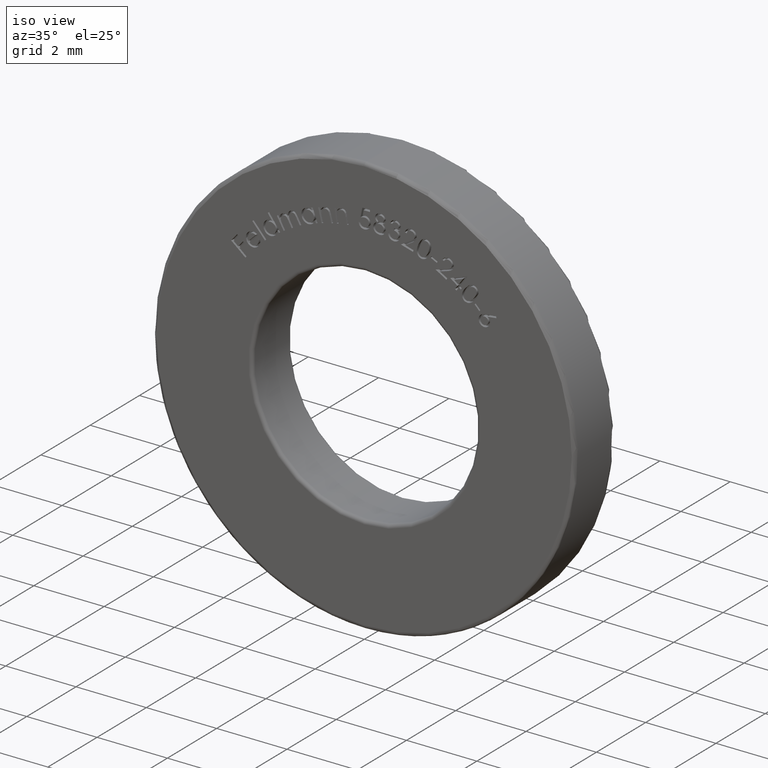
[diagram: clean part render]
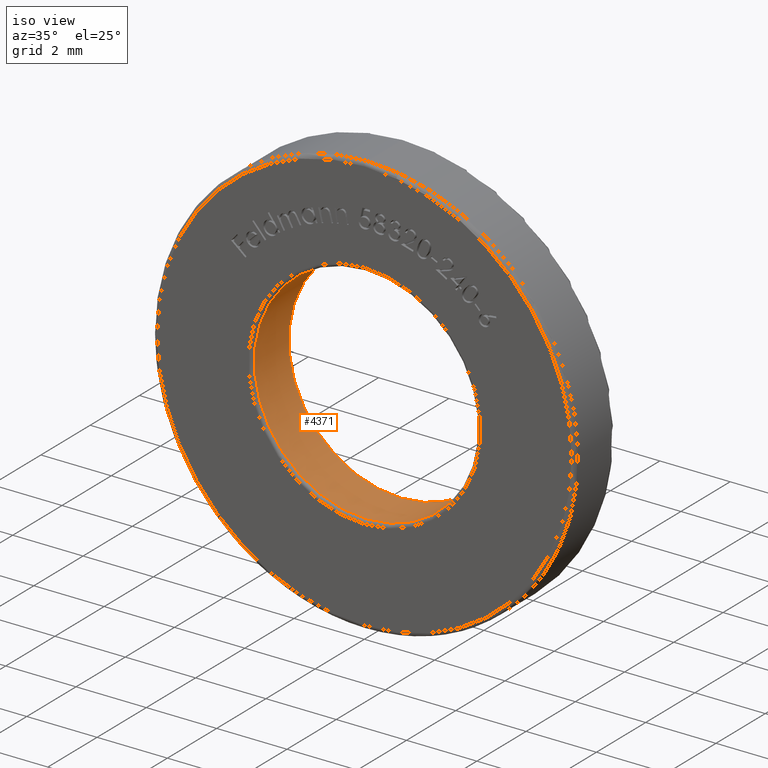
[diagram: same view with one face highlighted and labeled with its STEP entity id]
A machine part, iso view. The second image highlights one B-rep face of the part: STEP entity #4371.
In plain terms, the highlighted cylindrical surface (bore or boss wall) has radius 3.2 mm, axis along (-0, -1, -0).
Its self-contained STEP definition (entity closure, byte-faithful):
#502 = CARTESIAN_POINT ( 'NONE',  ( 0.0000000000000000000, 0.1000000000000000500, 0.0000000000000000000 ) ) ;
#659 = EDGE_LOOP ( 'NONE', ( #3274 ) ) ;
#1087 = CYLINDRICAL_SURFACE ( 'NONE', #10522, 3.200000000000000200 ) ;
#1152 = VERTEX_POINT ( 'NONE', #3756 ) ;
#1582 = DIRECTION ( 'NONE',  ( -0.0000000000000000000, -1.000000000000000000, -0.0000000000000000000 ) ) ;
#3274 = ORIENTED_EDGE ( 'NONE', *, *, #9890, .T. ) ;
#3756 = CARTESIAN_POINT ( 'NONE',  ( 0.0000000000000000000, 0.1000000000000000500, 3.200000000000000200 ) ) ;
#4231 = FACE_OUTER_BOUND ( 'NONE', #659, .T. ) ;
#4245 = DIRECTION ( 'NONE',  ( -0.0000000000000000000, -1.000000000000000000, -0.0000000000000000000 ) ) ;
#4371 = ADVANCED_FACE ( 'NONE', ( #13496, #4231 ), #1087, .F. ) ;
#5375 = AXIS2_PLACEMENT_3D ( 'NONE', #7523, #8601, #14394 ) ;
#5427 = DIRECTION ( 'NONE',  ( 0.0000000000000000000, 0.0000000000000000000, -1.000000000000000000 ) ) ;
#6304 = ORIENTED_EDGE ( 'NONE', *, *, #12792, .T. ) ;
#6783 = EDGE_LOOP ( 'NONE', ( #6304 ) ) ;
#7350 = VERTEX_POINT ( 'NONE', #10603 ) ;
#7523 = CARTESIAN_POINT ( 'NONE',  ( 0.0000000000000000000, 1.500000000000000000, 0.0000000000000000000 ) ) ;
#8601 = DIRECTION ( 'NONE',  ( 0.0000000000000000000, 1.000000000000000000, 0.0000000000000000000 ) ) ;
#8783 = CARTESIAN_POINT ( 'NONE',  ( 0.0000000000000000000, 1.600000000000000100, 0.0000000000000000000 ) ) ;
#9372 = CIRCLE ( 'NONE', #11253, 3.200000000000000200 ) ;
#9729 = DIRECTION ( 'NONE',  ( 0.0000000000000000000, 0.0000000000000000000, 1.000000000000000000 ) ) ;
#9890 = EDGE_CURVE ( 'NONE', #7350, #7350, #10518, .T. ) ;
#10518 = CIRCLE ( 'NONE', #5375, 3.200000000000000200 ) ;
#10522 = AXIS2_PLACEMENT_3D ( 'NONE', #8783, #4245, #5427 ) ;
#10603 = CARTESIAN_POINT ( 'NONE',  ( 0.0000000000000000000, 1.500000000000000000, 3.200000000000000200 ) ) ;
#11253 = AXIS2_PLACEMENT_3D ( 'NONE', #502, #1582, #9729 ) ;
#12792 = EDGE_CURVE ( 'NONE', #1152, #1152, #9372, .T. ) ;
#13496 = FACE_OUTER_BOUND ( 'NONE', #6783, .T. ) ;
#14394 = DIRECTION ( 'NONE',  ( 0.0000000000000000000, 0.0000000000000000000, 1.000000000000000000 ) ) ;